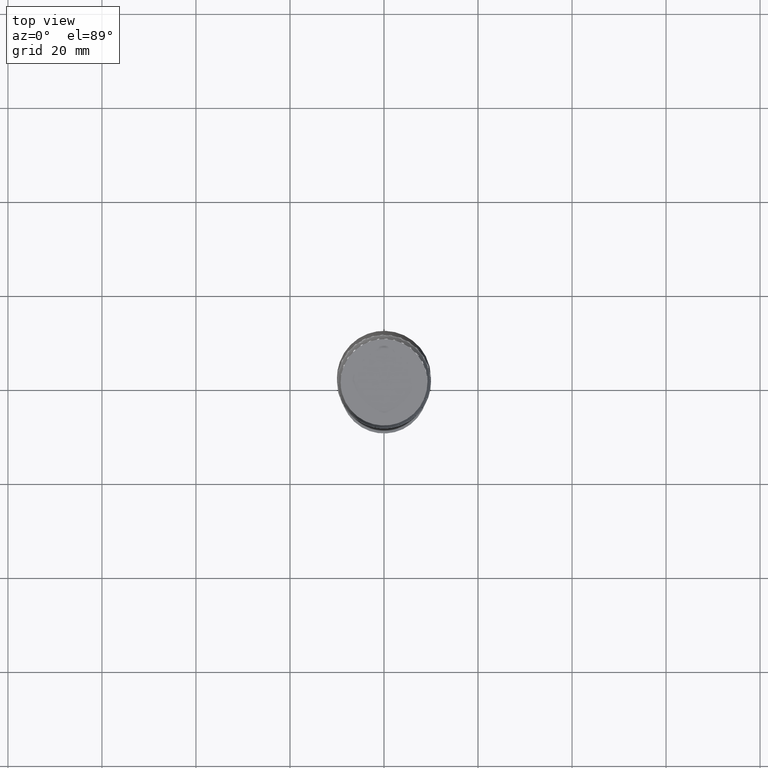
[diagram: clean part render]
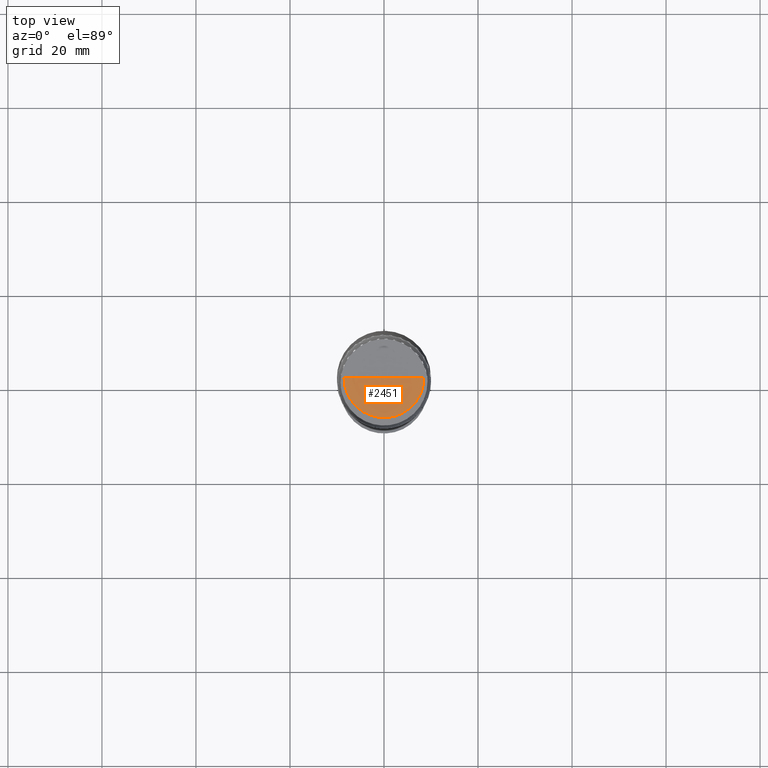
[diagram: same view with one face highlighted and labeled with its STEP entity id]
A machine part, top view. The second image highlights one B-rep face of the part: STEP entity #2451.
In plain terms, the highlighted face is a freeform B-spline surface patch.
Its self-contained STEP definition (entity closure, byte-faithful):
#2051=CARTESIAN_POINT('',(8.5,0.0,50.0));
#2055=CARTESIAN_POINT('',(-8.5,0.0,50.0));
#2056=CARTESIAN_POINT('',(0.0,0.0,50.0));
#2072=CARTESIAN_POINT('',(-8.5,-8.5,50.0));
#2073=CARTESIAN_POINT('',(0.0,-8.5,50.0));
#2074=CARTESIAN_POINT('',(8.5,-8.5,50.0));
#2436=(
BOUNDED_SURFACE()
B_SPLINE_SURFACE(1,2,(
(#2055,#2072,#2073,#2074,#2051),
(#2056,#2056,#2056,#2056,#2056)
), .UNSPECIFIED.,.F.,.F.,.F.)
B_SPLINE_SURFACE_WITH_KNOTS((2,2),(3,2,3),(
0.0,1.0),(
0.0,0.5,1.0), .UNSPECIFIED.)
GEOMETRIC_REPRESENTATION_ITEM()
RATIONAL_B_SPLINE_SURFACE(((1.0,0.707106781187,1.0,0.707106781187,1.0),
(1.0,0.707106781187,1.0,0.707106781187,1.0)
))
REPRESENTATION_ITEM('')
SURFACE()
);
#2437=(
BOUNDED_CURVE()
B_SPLINE_CURVE(2,(#2051,#2074,#2073,#2072,#2055),.UNSPECIFIED.,.F.,.F.)
B_SPLINE_CURVE_WITH_KNOTS((3,2,3),
(0.0,0.5,1.0),.UNSPECIFIED.)
CURVE()
GEOMETRIC_REPRESENTATION_ITEM()
RATIONAL_B_SPLINE_CURVE((1.0,0.707106781187,1.0,0.707106781187,1.0))
REPRESENTATION_ITEM('')
);
#2438=(
BOUNDED_CURVE()
B_SPLINE_CURVE(1,(#2055,#2056),.UNSPECIFIED.,.F.,.F.)
B_SPLINE_CURVE_WITH_KNOTS((2,2),
(0.0,1.0),.UNSPECIFIED.)
CURVE()
GEOMETRIC_REPRESENTATION_ITEM()
RATIONAL_B_SPLINE_CURVE((1.0,1.0))
REPRESENTATION_ITEM('')
);
#2439=(
BOUNDED_CURVE()
B_SPLINE_CURVE(1,(#2056,#2051),.UNSPECIFIED.,.F.,.F.)
B_SPLINE_CURVE_WITH_KNOTS((2,2),
(0.0,1.0),.UNSPECIFIED.)
CURVE()
GEOMETRIC_REPRESENTATION_ITEM()
RATIONAL_B_SPLINE_CURVE((1.0,1.0))
REPRESENTATION_ITEM('')
);
#2440=VERTEX_POINT('',#2051);
#2441=VERTEX_POINT('',#2055);
#2442=VERTEX_POINT('',#2056);
#2443=EDGE_CURVE('',#2440,#2441,#2437,.T.);
#2444=EDGE_CURVE('',#2441,#2442,#2438,.T.);
#2445=EDGE_CURVE('',#2442,#2440,#2439,.T.);
#2446=ORIENTED_EDGE('',*,*,#2443,.T.);
#2447=ORIENTED_EDGE('',*,*,#2444,.T.);
#2448=ORIENTED_EDGE('',*,*,#2445,.T.);
#2449=EDGE_LOOP('',(#2446,#2447,#2448));
#2450=FACE_OUTER_BOUND('',#2449,.T.);
#2451=ADVANCED_FACE('',(#2450),#2436,.T.);